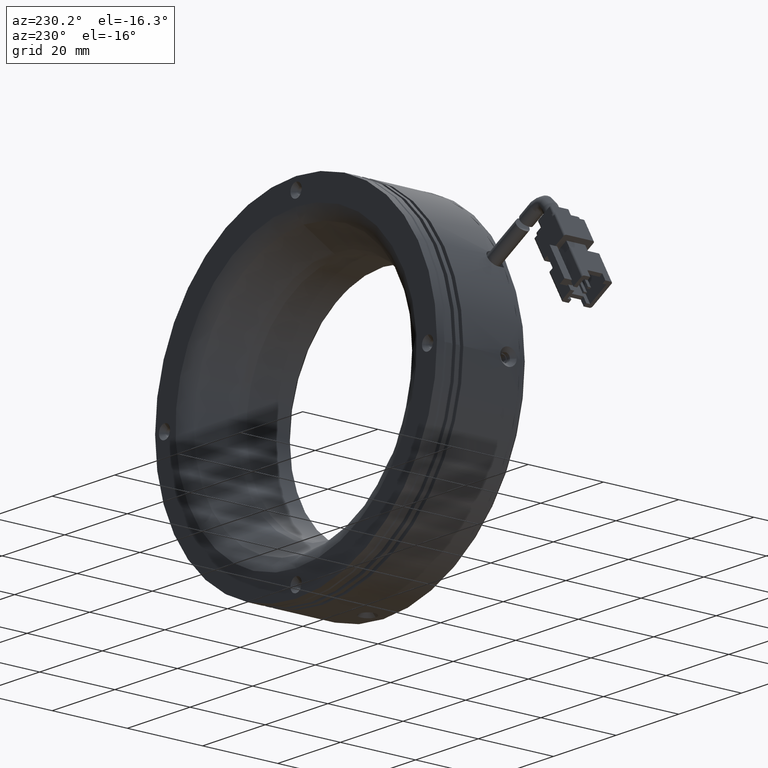
[diagram: clean part render]
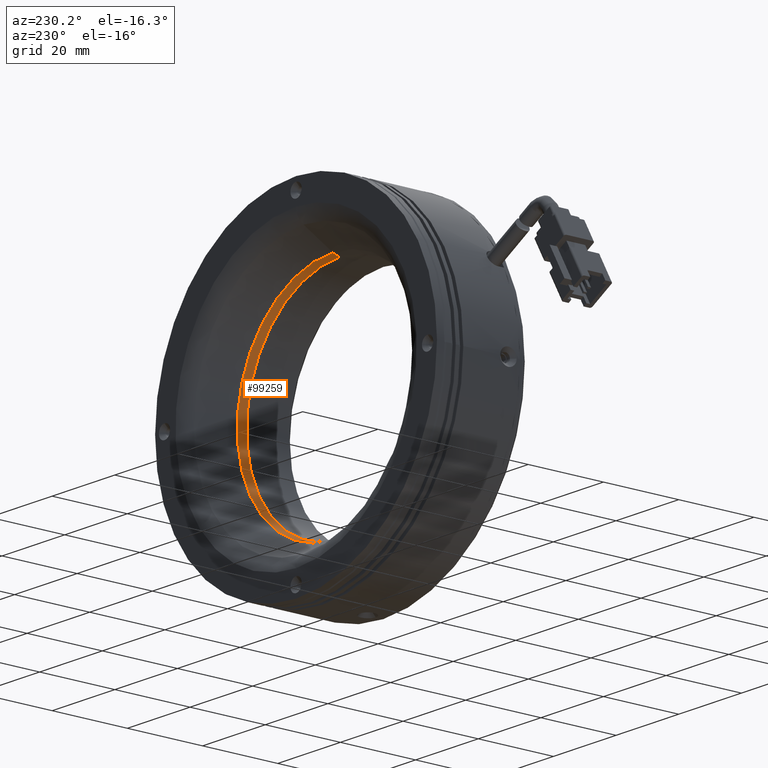
[diagram: same view with one face highlighted and labeled with its STEP entity id]
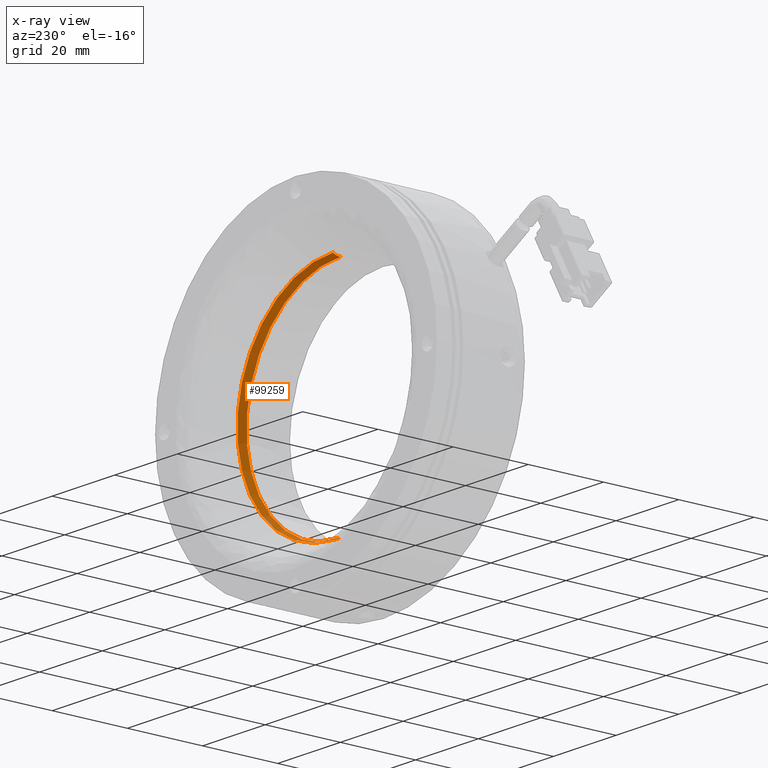
[diagram: x-ray of the same camera — body ghosted, the highlighted face saturated]
A machine part, auxiliary view. The second image highlights one B-rep face of the part: STEP entity #99259.
The next image is the same camera in x-ray: the body ghosted, the highlighted face saturated — about 0% of this face is hidden behind the body in this view.
In plain terms, the highlighted face is a freeform B-spline surface patch.
Its self-contained STEP definition (entity closure, byte-faithful):
#85 = ORIENTED_EDGE ( 'NONE', *, *, #47552, .T. ) ;
#4864 = EDGE_CURVE ( 'NONE', #116417, #115283, #59001, .T. ) ;
#5919 = CARTESIAN_POINT ( 'NONE',  ( 51.37667247461708800, 17.88560255269061000, -29.99999999999998200 ) ) ;
#12877 = AXIS2_PLACEMENT_3D ( 'NONE', #49673, #117452, #59392 ) ;
#14806 = CARTESIAN_POINT ( 'NONE',  ( -8.623327525382887200, 19.17937570147887900, -30.53589838486223200 ) ) ;
#15672 = CARTESIAN_POINT ( 'NONE',  ( -8.623327525382890700, 17.88560255269061400, 30.00000000000000400 ) ) ;
#18777 = CARTESIAN_POINT ( 'NONE',  ( -8.623327525382890700, 19.17937570147887500, 30.53589838486225000 ) ) ;
#24051 = VERTEX_POINT ( 'NONE', #34634 ) ;
#24805 = EDGE_CURVE ( 'NONE', #116417, #41662, #65956, .T. ) ;
#25387 = CARTESIAN_POINT ( 'NONE',  ( 51.37667247461708800, 17.17937570147888600, -29.99999999999998200 ) ) ;
#29462 = CARTESIAN_POINT ( 'NONE',  ( -8.623327525382887200, 17.17937570147888600, 34.00000000000000700 ) ) ;
#33594 = ORIENTED_EDGE ( 'NONE', *, *, #125531, .T. ) ;
#34634 = CARTESIAN_POINT ( 'NONE',  ( -8.623327525382887200, 17.17937570147888600, -29.99999999999999300 ) ) ;
#34642 = DIRECTION ( 'NONE',  ( 1.000000000000000000, 0.0000000000000000000, 0.0000000000000000000 ) ) ;
#34643 = CARTESIAN_POINT ( 'NONE',  ( 52.44846924434157400, 19.17937570147888200, 30.53589838486225400 ) ) ;
#35053 = CARTESIAN_POINT ( 'NONE',  ( -8.623327525382890700, 17.17937570147888600, 30.00000000000001100 ) ) ;
#38267 = CIRCLE ( 'NONE', #92691, 30.00000000000000000 ) ;
#39146 = ORIENTED_EDGE ( 'NONE', *, *, #4864, .F. ) ;
#39172 = DIRECTION ( 'NONE',  ( 0.0000000000000000000, 0.0000000000000000000, 1.000000000000000000 ) ) ;
#39246 = FACE_OUTER_BOUND ( 'NONE', #105779, .T. ) ;
#40504 = CIRCLE ( 'NONE', #119963, 4.000000000000003600 ) ;
#41662 = VERTEX_POINT ( 'NONE', #106527 ) ;
#44459 = CARTESIAN_POINT ( 'NONE',  ( -8.623327525382885400, 18.56776530749483500, -30.18278495925636300 ) ) ;
#47552 = EDGE_CURVE ( 'NONE', #24051, #115283, #38267, .T. ) ;
#49673 = CARTESIAN_POINT ( 'NONE',  ( -8.623327525382890700, 19.17937570147887900, 1.040834085586084300E-014 ) ) ;
#54101 = CARTESIAN_POINT ( 'NONE',  ( 51.74224239312986400, 18.56776530749483100, 30.18278495925639100 ) ) ;
#55578 = DIRECTION ( 'NONE',  ( 0.0000000000000000000, -1.000000000000000000, 0.0000000000000000000 ) ) ;
#59001 = CIRCLE ( 'NONE', #99895, 3.999999999999996400 ) ;
#59392 = DIRECTION ( 'NONE',  ( 0.0000000000000000000, -1.136186303813987500E-016, 1.000000000000000000 ) ) ;
#63843 = CARTESIAN_POINT ( 'NONE',  ( -8.623327525382885400, 17.88560255269061400, -29.99999999999998900 ) ) ;
#65956 = CIRCLE ( 'NONE', #12877, 30.53589838486223900 ) ;
#73538 = CARTESIAN_POINT ( 'NONE',  ( 51.37667247461708800, 17.88560255269061000, 30.00000000000001400 ) ) ;
#76417 =( BOUNDED_SURFACE ( )  B_SPLINE_SURFACE ( 3, 3, ( 
 ( #14806, #92603, #34643, #102386 ),
 ( #44459, #112116, #54101, #121838 ),
 ( #63843, #5919, #73538, #15672 ),
 ( #83252, #25387, #93034, #35053 ) ),
 .UNSPECIFIED., .F., .F., .F. ) 
 B_SPLINE_SURFACE_WITH_KNOTS ( ( 4, 4 ),
 ( 4, 4 ),
 ( 0.0000000000000000000, 1.000000000000000000 ),
 ( 0.0000000000000000000, 1.000000000000000000 ),
 .UNSPECIFIED. ) 
 GEOMETRIC_REPRESENTATION_ITEM ( )  RATIONAL_B_SPLINE_SURFACE ( (
 ( 1.000000000000000000, 0.3333333333333334300, 0.3333333333333334300, 1.000000000000000000),
 ( 0.9772838841927123900, 0.3257612947309042100, 0.3257612947309042100, 0.9772838841927123900),
 ( 0.9772838841927123900, 0.3257612947309042100, 0.3257612947309042100, 0.9772838841927123900),
 ( 1.000000000000000000, 0.3333333333333334300, 0.3333333333333334300, 1.000000000000000000) ) ) 
 REPRESENTATION_ITEM ( '' )  SURFACE ( )  );
#83252 = CARTESIAN_POINT ( 'NONE',  ( -8.623327525382887200, 17.17937570147888600, -29.99999999999998900 ) ) ;
#92602 = CARTESIAN_POINT ( 'NONE',  ( -8.623327525382890700, 17.17937570147888600, -33.99999999999998600 ) ) ;
#92603 = CARTESIAN_POINT ( 'NONE',  ( 52.44846924434158800, 19.17937570147888200, -30.53589838486222500 ) ) ;
#92691 = AXIS2_PLACEMENT_3D ( 'NONE', #113601, #55578, #123314 ) ;
#93034 = CARTESIAN_POINT ( 'NONE',  ( 51.37667247461708800, 17.17937570147888600, 30.00000000000000700 ) ) ;
#97058 = DIRECTION ( 'NONE',  ( -1.000000000000000000, 0.0000000000000000000, 1.224646799147353200E-016 ) ) ;
#99259 = ADVANCED_FACE ( 'NONE', ( #39246 ), #76417, .T. ) ;
#99895 = AXIS2_PLACEMENT_3D ( 'NONE', #29462, #97058, #39172 ) ;
#102385 = DIRECTION ( 'NONE',  ( 0.0000000000000000000, 0.0000000000000000000, -1.000000000000000000 ) ) ;
#102386 = CARTESIAN_POINT ( 'NONE',  ( -8.623327525382890700, 19.17937570147887900, 30.53589838486225400 ) ) ;
#103239 = CARTESIAN_POINT ( 'NONE',  ( -8.623327525382890700, 17.17937570147888600, 30.00000000000001400 ) ) ;
#105123 = ORIENTED_EDGE ( 'NONE', *, *, #24805, .T. ) ;
#105779 = EDGE_LOOP ( 'NONE', ( #39146, #105123, #33594, #85 ) ) ;
#106527 = CARTESIAN_POINT ( 'NONE',  ( -8.623327525382887200, 19.17937570147887900, -30.53589838486222900 ) ) ;
#112116 = CARTESIAN_POINT ( 'NONE',  ( 51.74224239312986400, 18.56776530749483100, -30.18278495925636300 ) ) ;
#113601 = CARTESIAN_POINT ( 'NONE',  ( -8.623327525382890700, 17.17937570147888600, 1.040834085586084300E-014 ) ) ;
#115283 = VERTEX_POINT ( 'NONE', #103239 ) ;
#116417 = VERTEX_POINT ( 'NONE', #18777 ) ;
#117452 = DIRECTION ( 'NONE',  ( -0.0000000000000000000, 1.000000000000000000, -0.0000000000000000000 ) ) ;
#119963 = AXIS2_PLACEMENT_3D ( 'NONE', #92602, #34642, #102385 ) ;
#121838 = CARTESIAN_POINT ( 'NONE',  ( -8.623327525382890700, 18.56776530749483500, 30.18278495925638800 ) ) ;
#123314 = DIRECTION ( 'NONE',  ( 0.0000000000000000000, 0.0000000000000000000, -1.000000000000000000 ) ) ;
#125531 = EDGE_CURVE ( 'NONE', #41662, #24051, #40504, .T. ) ;